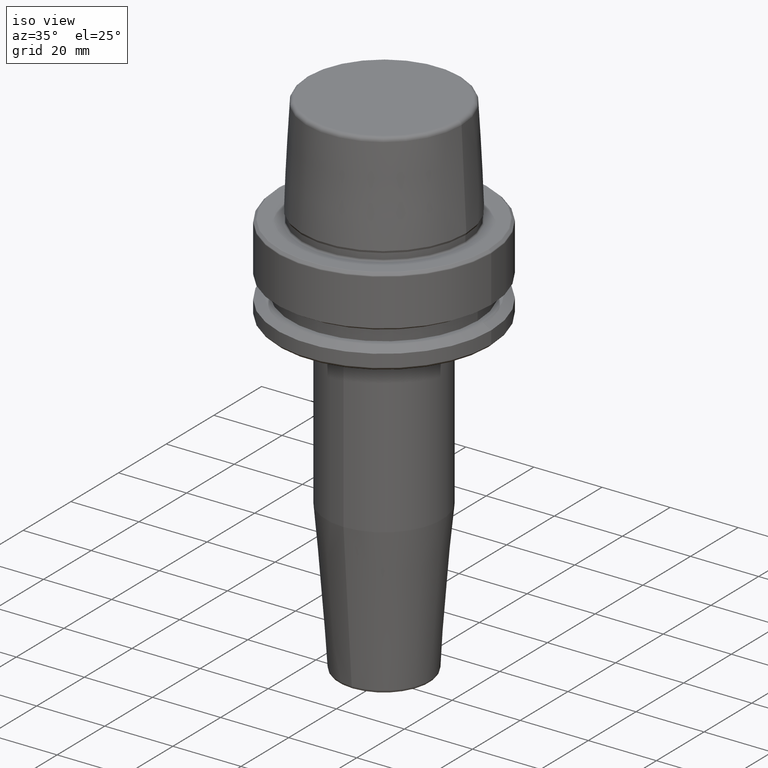
[diagram: clean part render]
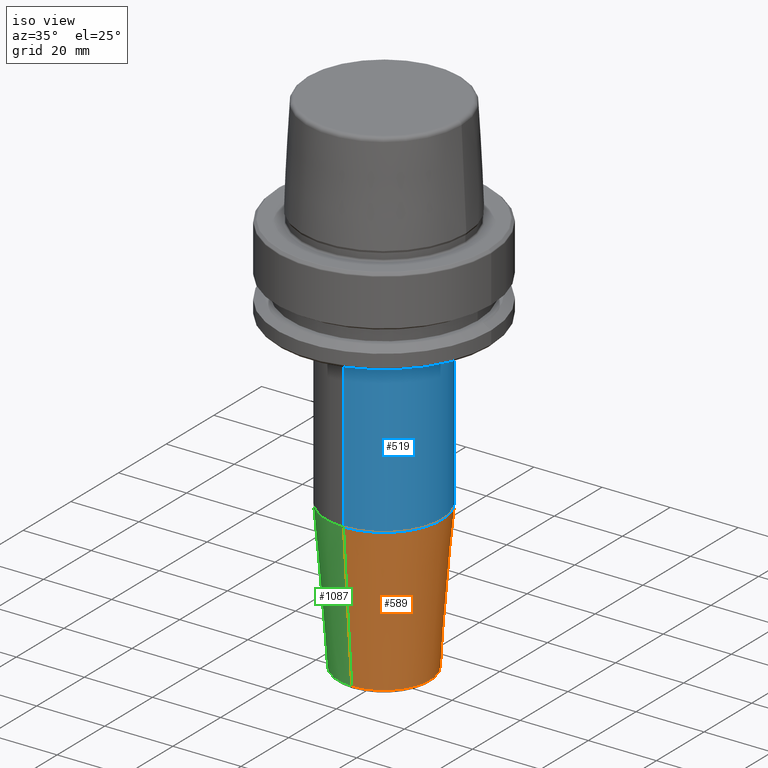
[diagram: same view with three faces highlighted in distinct colors, each labeled with its STEP entity id]
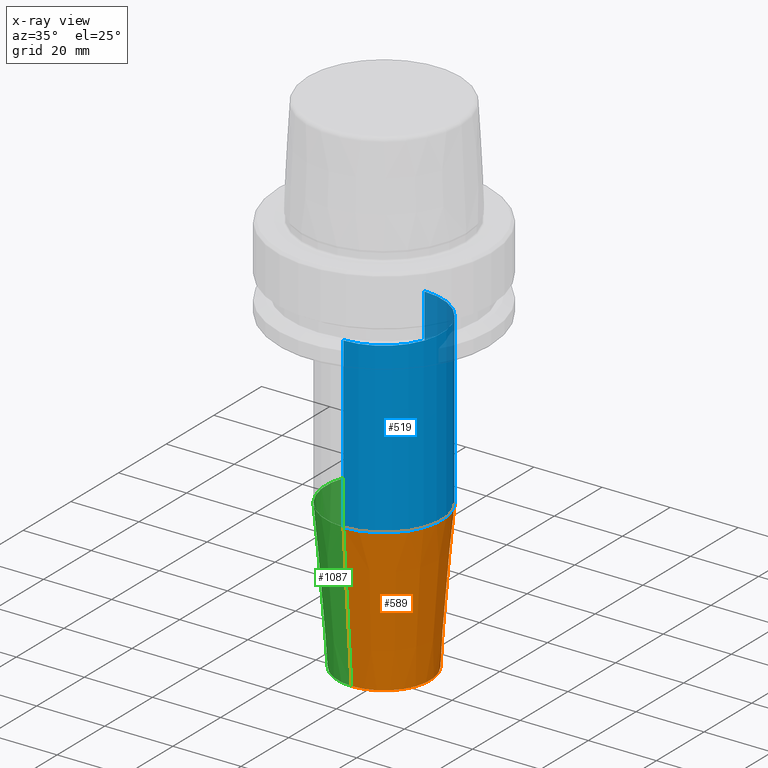
[diagram: x-ray of the same camera — body ghosted, the three highlighted faces saturated]
A machine part, iso view with three faces highlighted in distinct colors.
The next image is the same camera in x-ray (body ghosted, the three faces saturated) — at least one of them is partly hidden behind the body in this view.
Their STEP definitions:

[orange] entity #589 — the highlighted conical surface has half-angle 4.5 deg.
#2 = VERTEX_POINT ( 'NONE', #825 ) ;
#14 = DIRECTION ( 'NONE',  ( 9.608468044709222900E-018, 0.07845909572783768500, 0.9969173337331285200 ) ) ;
#23 = CIRCLE ( 'NONE', #433, 16.99999999999998200 ) ;
#42 = LINE ( 'NONE', #353, #818 ) ;
#77 = CARTESIAN_POINT ( 'NONE',  ( 1.662155155348857600E-015, -13.57252684207490700, -119.0784590957278200 ) ) ;
#128 = EDGE_CURVE ( 'NONE', #2, #342, #23, .T. ) ;
#129 = CARTESIAN_POINT ( 'NONE',  ( 0.0000000000000000000, -16.99999999999998600, -75.52828342338449400 ) ) ;
#228 = CARTESIAN_POINT ( 'NONE',  ( 0.0000000000000000000, 1.613155685151880700E-015, -75.52828342338449400 ) ) ;
#342 = VERTEX_POINT ( 'NONE', #129 ) ;
#353 = CARTESIAN_POINT ( 'NONE',  ( 0.0000000000000000000, -16.99999999999998600, -75.52828342338449400 ) ) ;
#433 = AXIS2_PLACEMENT_3D ( 'NONE', #1165, #520, #798 ) ;
#445 = DIRECTION ( 'NONE',  ( 0.0000000000000000000, -3.257039359434450100E-017, 1.000000000000000000 ) ) ;
#451 = DIRECTION ( 'NONE',  ( 0.0000000000000000000, -0.07845909572783774100, 0.9969173337331285200 ) ) ;
#488 = CIRCLE ( 'NONE', #885, 13.57252684207490900 ) ;
#520 = DIRECTION ( 'NONE',  ( -0.0000000000000000000, 3.257039359434450100E-017, -1.000000000000000000 ) ) ;
#537 = DIRECTION ( 'NONE',  ( 0.0000000000000000000, -1.000000000000000000, 0.0000000000000000000 ) ) ;
#540 = EDGE_LOOP ( 'NONE', ( #862, #962, #830, #684 ) ) ;
#556 = DIRECTION ( 'NONE',  ( -0.0000000000000000000, 3.257039359434450100E-017, -1.000000000000000000 ) ) ;
#589 = ADVANCED_FACE ( 'NONE', ( #1224 ), #921, .T. ) ;
#657 = EDGE_CURVE ( 'NONE', #875, #1006, #488, .T. ) ;
#678 = CARTESIAN_POINT ( 'NONE',  ( 2.081899558550499100E-015, 16.99999999999998600, -75.52828342338449400 ) ) ;
#684 = ORIENTED_EDGE ( 'NONE', *, *, #941, .F. ) ;
#747 = VECTOR ( 'NONE', #14, 1000.000000000000000 ) ;
#767 = CARTESIAN_POINT ( 'NONE',  ( 0.0000000000000000000, 13.57252684207491500, -119.0784590957278200 ) ) ;
#798 = DIRECTION ( 'NONE',  ( 0.0000000000000000000, 1.000000000000000000, 0.0000000000000000000 ) ) ;
#818 = VECTOR ( 'NONE', #451, 1000.000000000000000 ) ;
#825 = CARTESIAN_POINT ( 'NONE',  ( 2.081899558550499100E-015, 16.99999999999998600, -75.52828342338449400 ) ) ;
#830 = ORIENTED_EDGE ( 'NONE', *, *, #128, .T. ) ;
#862 = ORIENTED_EDGE ( 'NONE', *, *, #657, .F. ) ;
#875 = VERTEX_POINT ( 'NONE', #767 ) ;
#885 = AXIS2_PLACEMENT_3D ( 'NONE', #1144, #556, #1239 ) ;
#893 = LINE ( 'NONE', #678, #747 ) ;
#910 = EDGE_CURVE ( 'NONE', #875, #2, #893, .T. ) ;
#921 = CONICAL_SURFACE ( 'NONE', #1115, 16.99999999999998600, 0.07853981633973758400 ) ;
#941 = EDGE_CURVE ( 'NONE', #1006, #342, #42, .T. ) ;
#962 = ORIENTED_EDGE ( 'NONE', *, *, #910, .T. ) ;
#1006 = VERTEX_POINT ( 'NONE', #77 ) ;
#1115 = AXIS2_PLACEMENT_3D ( 'NONE', #228, #445, #537 ) ;
#1144 = CARTESIAN_POINT ( 'NONE',  ( 0.0000000000000000000, 3.031602047902949600E-015, -119.0784590957278200 ) ) ;
#1165 = CARTESIAN_POINT ( 'NONE',  ( 0.0000000000000000000, 1.613155685151880700E-015, -75.52828342338449400 ) ) ;
#1224 = FACE_OUTER_BOUND ( 'NONE', #540, .T. ) ;
#1239 = DIRECTION ( 'NONE',  ( 0.0000000000000000000, 1.000000000000000000, 0.0000000000000000000 ) ) ;

[blue] entity #519 — the highlighted cylindrical surface (partial cylindrical patch) has radius 17 mm, axis along (-0, 0, -1).
#2 = VERTEX_POINT ( 'NONE', #825 ) ;
#23 = CIRCLE ( 'NONE', #433, 16.99999999999998200 ) ;
#128 = EDGE_CURVE ( 'NONE', #2, #342, #23, .T. ) ;
#129 = CARTESIAN_POINT ( 'NONE',  ( 0.0000000000000000000, -16.99999999999998600, -75.52828342338449400 ) ) ;
#217 = CARTESIAN_POINT ( 'NONE',  ( 0.0000000000000000000, -3.851859888774471700E-031, -26.00000000000001100 ) ) ;
#234 = ORIENTED_EDGE ( 'NONE', *, *, #1217, .T. ) ;
#265 = CARTESIAN_POINT ( 'NONE',  ( 0.0000000000000000000, 16.99999999999998900, -26.00000000000001100 ) ) ;
#273 = ORIENTED_EDGE ( 'NONE', *, *, #419, .F. ) ;
#313 = DIRECTION ( 'NONE',  ( 1.000000000000000000, 0.0000000000000000000, 0.0000000000000000000 ) ) ;
#339 = AXIS2_PLACEMENT_3D ( 'NONE', #217, #870, #313 ) ;
#342 = VERTEX_POINT ( 'NONE', #129 ) ;
#406 = FACE_OUTER_BOUND ( 'NONE', #706, .T. ) ;
#419 = EDGE_CURVE ( 'NONE', #616, #2, #1139, .T. ) ;
#433 = AXIS2_PLACEMENT_3D ( 'NONE', #1165, #520, #798 ) ;
#455 = DIRECTION ( 'NONE',  ( 0.0000000000000000000, 1.000000000000000000, 0.0000000000000000000 ) ) ;
#490 = CIRCLE ( 'NONE', #339, 16.99999999999998900 ) ;
#498 = CARTESIAN_POINT ( 'NONE',  ( 2.081899558550499500E-015, -16.99999999999998900, -26.00000000000001100 ) ) ;
#519 = ADVANCED_FACE ( 'NONE', ( #406 ), #1120, .T. ) ;
#520 = DIRECTION ( 'NONE',  ( -0.0000000000000000000, 3.257039359434450100E-017, -1.000000000000000000 ) ) ;
#534 = CARTESIAN_POINT ( 'NONE',  ( 0.0000000000000000000, 16.99999999999999300, -120.0000000000000000 ) ) ;
#616 = VERTEX_POINT ( 'NONE', #265 ) ;
#665 = ORIENTED_EDGE ( 'NONE', *, *, #128, .F. ) ;
#706 = EDGE_LOOP ( 'NONE', ( #234, #1241, #665, #273 ) ) ;
#734 = CARTESIAN_POINT ( 'NONE',  ( 0.0000000000000000000, 3.061616997868382300E-015, -120.0000000000000000 ) ) ;
#783 = CARTESIAN_POINT ( 'NONE',  ( 2.081899558550499500E-015, -16.99999999999998600, -120.0000000000000000 ) ) ;
#798 = DIRECTION ( 'NONE',  ( 0.0000000000000000000, 1.000000000000000000, 0.0000000000000000000 ) ) ;
#825 = CARTESIAN_POINT ( 'NONE',  ( 2.081899558550499100E-015, 16.99999999999998600, -75.52828342338449400 ) ) ;
#870 = DIRECTION ( 'NONE',  ( 0.0000000000000000000, 0.0000000000000000000, -1.000000000000000000 ) ) ;
#874 = DIRECTION ( 'NONE',  ( -0.0000000000000000000, 3.257039359434450100E-017, -1.000000000000000000 ) ) ;
#894 = AXIS2_PLACEMENT_3D ( 'NONE', #734, #1035, #455 ) ;
#907 = VERTEX_POINT ( 'NONE', #498 ) ;
#1024 = LINE ( 'NONE', #783, #1070 ) ;
#1035 = DIRECTION ( 'NONE',  ( -0.0000000000000000000, 3.257039359434450100E-017, -1.000000000000000000 ) ) ;
#1070 = VECTOR ( 'NONE', #874, 1000.000000000000000 ) ;
#1120 = CYLINDRICAL_SURFACE ( 'NONE', #894, 16.99999999999998900 ) ;
#1123 = DIRECTION ( 'NONE',  ( -0.0000000000000000000, 3.257039359434450100E-017, -1.000000000000000000 ) ) ;
#1124 = VECTOR ( 'NONE', #1123, 1000.000000000000000 ) ;
#1139 = LINE ( 'NONE', #534, #1124 ) ;
#1165 = CARTESIAN_POINT ( 'NONE',  ( 0.0000000000000000000, 1.613155685151880700E-015, -75.52828342338449400 ) ) ;
#1217 = EDGE_CURVE ( 'NONE', #616, #907, #490, .T. ) ;
#1241 = ORIENTED_EDGE ( 'NONE', *, *, #1255, .T. ) ;
#1255 = EDGE_CURVE ( 'NONE', #907, #342, #1024, .T. ) ;

[green] entity #1087 — the highlighted conical surface has half-angle 4.5 deg.
#2 = VERTEX_POINT ( 'NONE', #825 ) ;
#13 = FACE_OUTER_BOUND ( 'NONE', #754, .T. ) ;
#14 = DIRECTION ( 'NONE',  ( 9.608468044709222900E-018, 0.07845909572783768500, 0.9969173337331285200 ) ) ;
#42 = LINE ( 'NONE', #353, #818 ) ;
#77 = CARTESIAN_POINT ( 'NONE',  ( 1.662155155348857600E-015, -13.57252684207490700, -119.0784590957278200 ) ) ;
#114 = AXIS2_PLACEMENT_3D ( 'NONE', #550, #1237, #636 ) ;
#129 = CARTESIAN_POINT ( 'NONE',  ( 0.0000000000000000000, -16.99999999999998600, -75.52828342338449400 ) ) ;
#166 = CARTESIAN_POINT ( 'NONE',  ( 0.0000000000000000000, 1.613155685151880700E-015, -75.52828342338449400 ) ) ;
#262 = DIRECTION ( 'NONE',  ( 0.0000000000000000000, 1.000000000000000000, 0.0000000000000000000 ) ) ;
#306 = ORIENTED_EDGE ( 'NONE', *, *, #955, .T. ) ;
#342 = VERTEX_POINT ( 'NONE', #129 ) ;
#353 = CARTESIAN_POINT ( 'NONE',  ( 0.0000000000000000000, -16.99999999999998600, -75.52828342338449400 ) ) ;
#423 = CIRCLE ( 'NONE', #998, 16.99999999999998200 ) ;
#451 = DIRECTION ( 'NONE',  ( 0.0000000000000000000, -0.07845909572783774100, 0.9969173337331285200 ) ) ;
#476 = DIRECTION ( 'NONE',  ( 0.0000000000000000000, -3.257039359434450100E-017, 1.000000000000000000 ) ) ;
#550 = CARTESIAN_POINT ( 'NONE',  ( 0.0000000000000000000, 3.031602047902949600E-015, -119.0784590957278200 ) ) ;
#553 = AXIS2_PLACEMENT_3D ( 'NONE', #647, #476, #566 ) ;
#566 = DIRECTION ( 'NONE',  ( 0.0000000000000000000, -1.000000000000000000, 0.0000000000000000000 ) ) ;
#627 = EDGE_CURVE ( 'NONE', #1006, #875, #831, .T. ) ;
#636 = DIRECTION ( 'NONE',  ( 0.0000000000000000000, 1.000000000000000000, 0.0000000000000000000 ) ) ;
#647 = CARTESIAN_POINT ( 'NONE',  ( 0.0000000000000000000, 1.613155685151880700E-015, -75.52828342338449400 ) ) ;
#651 = ORIENTED_EDGE ( 'NONE', *, *, #910, .F. ) ;
#678 = CARTESIAN_POINT ( 'NONE',  ( 2.081899558550499100E-015, 16.99999999999998600, -75.52828342338449400 ) ) ;
#747 = VECTOR ( 'NONE', #14, 1000.000000000000000 ) ;
#754 = EDGE_LOOP ( 'NONE', ( #651, #1228, #1219, #306 ) ) ;
#767 = CARTESIAN_POINT ( 'NONE',  ( 0.0000000000000000000, 13.57252684207491500, -119.0784590957278200 ) ) ;
#818 = VECTOR ( 'NONE', #451, 1000.000000000000000 ) ;
#823 = DIRECTION ( 'NONE',  ( -0.0000000000000000000, 3.257039359434450100E-017, -1.000000000000000000 ) ) ;
#825 = CARTESIAN_POINT ( 'NONE',  ( 2.081899558550499100E-015, 16.99999999999998600, -75.52828342338449400 ) ) ;
#831 = CIRCLE ( 'NONE', #114, 13.57252684207490900 ) ;
#875 = VERTEX_POINT ( 'NONE', #767 ) ;
#893 = LINE ( 'NONE', #678, #747 ) ;
#910 = EDGE_CURVE ( 'NONE', #875, #2, #893, .T. ) ;
#941 = EDGE_CURVE ( 'NONE', #1006, #342, #42, .T. ) ;
#955 = EDGE_CURVE ( 'NONE', #342, #2, #423, .T. ) ;
#998 = AXIS2_PLACEMENT_3D ( 'NONE', #166, #823, #262 ) ;
#1006 = VERTEX_POINT ( 'NONE', #77 ) ;
#1087 = ADVANCED_FACE ( 'NONE', ( #13 ), #1116, .T. ) ;
#1116 = CONICAL_SURFACE ( 'NONE', #553, 16.99999999999998600, 0.07853981633973758400 ) ;
#1219 = ORIENTED_EDGE ( 'NONE', *, *, #941, .T. ) ;
#1228 = ORIENTED_EDGE ( 'NONE', *, *, #627, .F. ) ;
#1237 = DIRECTION ( 'NONE',  ( -0.0000000000000000000, 3.257039359434450100E-017, -1.000000000000000000 ) ) ;